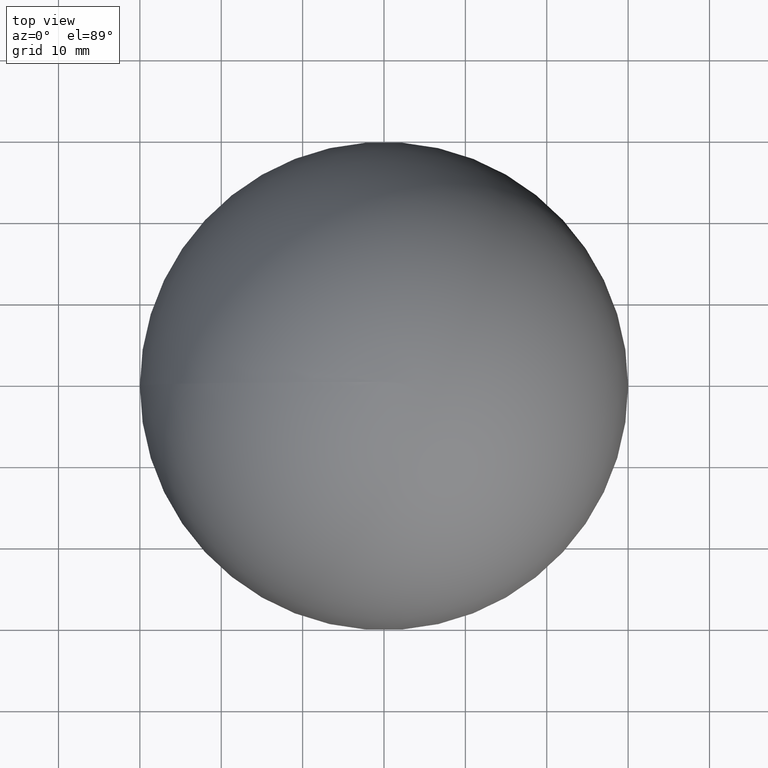
[diagram: clean part render]
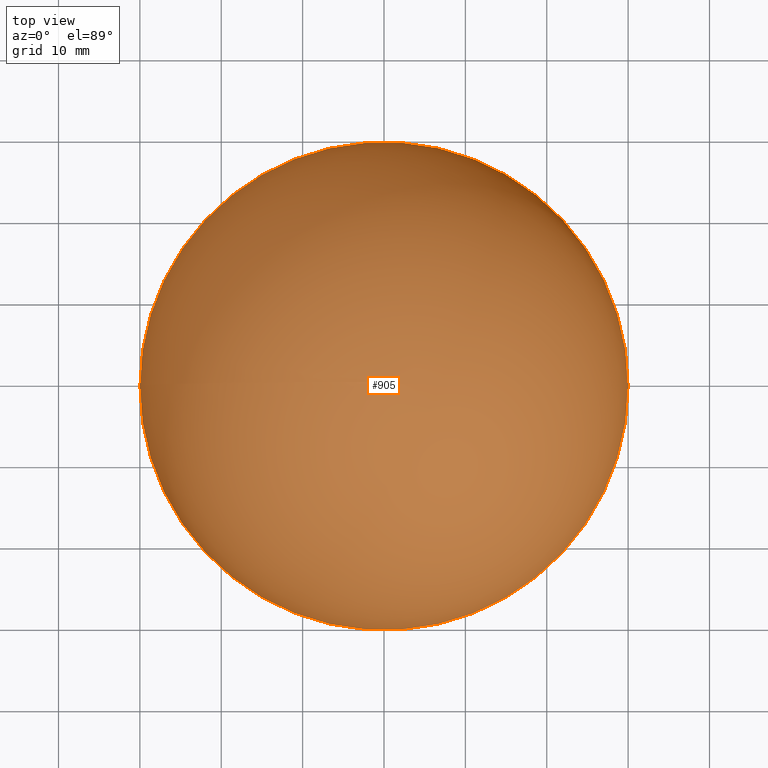
[diagram: same view with one face highlighted and labeled with its STEP entity id]
A machine part, top view. The second image highlights one B-rep face of the part: STEP entity #905.
In plain terms, the highlighted spherical surface has radius 30 mm.
Its self-contained STEP definition (entity closure, byte-faithful):
#639 = CARTESIAN_POINT ( 'NONE',  ( 30.00000000000000000, 3.673940397442059178E-15, 2.094888803305880013E-13 ) ) ;
#750 = DIRECTION ( 'NONE',  ( 6.982962677686266711E-15, 0.000000000000000000, -1.000000000000000000 ) ) ;
#905 = ADVANCED_FACE ( 'NONE', ( #8058 ), #5460, .T. ) ;
#947 = AXIS2_PLACEMENT_3D ( 'NONE', #8802, #1709, #4105 ) ;
#1709 = DIRECTION ( 'NONE',  ( 6.982962677686266711E-15, 0.000000000000000000, -1.000000000000000000 ) ) ;
#2037 = CIRCLE ( 'NONE', #8237, 30.00000000000000000 ) ;
#2083 = CARTESIAN_POINT ( 'NONE',  ( 0.000000000000000000, 0.000000000000000000, 0.000000000000000000 ) ) ;
#4105 = DIRECTION ( 'NONE',  ( -1.000000000000000000, 0.000000000000000000, -6.982962677686266711E-15 ) ) ;
#4333 = VERTEX_POINT ( 'NONE', #9106 ) ;
#5165 = EDGE_CURVE ( 'NONE', #6731, #4333, #2037, .T. ) ;
#5376 = DIRECTION ( 'NONE',  ( -1.000000000000000000, 0.000000000000000000, -6.982962677686266711E-15 ) ) ;
#5385 = CIRCLE ( 'NONE', #947, 30.00000000000000000 ) ;
#5460 = SPHERICAL_SURFACE ( 'NONE', #6486, 30.00000000000000000 ) ;
#5944 = ORIENTED_EDGE ( 'NONE', *, *, #7882, .F. ) ;
#6486 = AXIS2_PLACEMENT_3D ( 'NONE', #2083, #6937, #9220 ) ;
#6731 = VERTEX_POINT ( 'NONE', #639 ) ;
#6937 = DIRECTION ( 'NONE',  ( -6.982962677686266711E-15, 0.000000000000000000, 1.000000000000000000 ) ) ;
#6958 = CARTESIAN_POINT ( 'NONE',  ( 0.000000000000000000, 0.000000000000000000, 0.000000000000000000 ) ) ;
#7882 = EDGE_CURVE ( 'NONE', #4333, #6731, #5385, .T. ) ;
#8058 = FACE_OUTER_BOUND ( 'NONE', #8315, .T. ) ;
#8237 = AXIS2_PLACEMENT_3D ( 'NONE', #6958, #750, #5376 ) ;
#8315 = EDGE_LOOP ( 'NONE', ( #5944, #8771 ) ) ;
#8771 = ORIENTED_EDGE ( 'NONE', *, *, #5165, .F. ) ;
#8802 = CARTESIAN_POINT ( 'NONE',  ( 0.000000000000000000, 0.000000000000000000, 0.000000000000000000 ) ) ;
#9106 = CARTESIAN_POINT ( 'NONE',  ( -30.00000000000000000, 0.000000000000000000, -2.094888803305880013E-13 ) ) ;
#9220 = DIRECTION ( 'NONE',  ( -1.000000000000000000, 0.000000000000000000, -6.982962677686266711E-15 ) ) ;